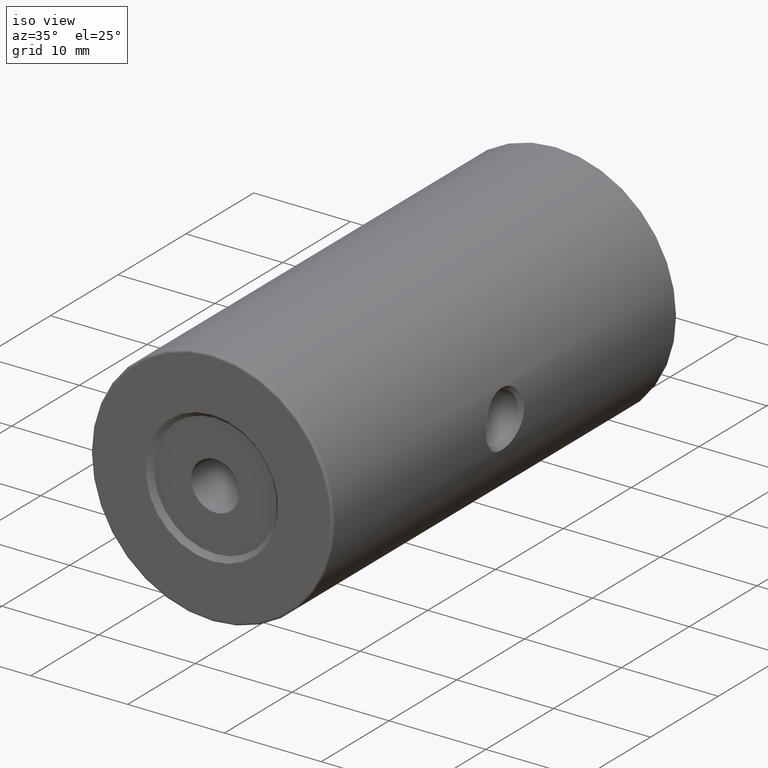
[diagram: clean part render]
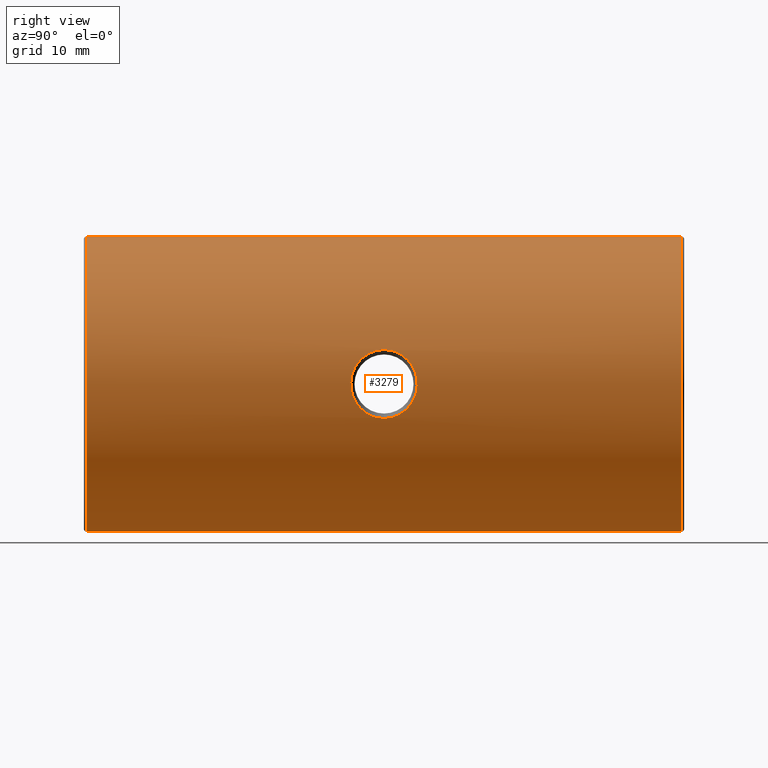
[diagram: tour spotlight — one face highlighted and labeled with its STEP entity id]
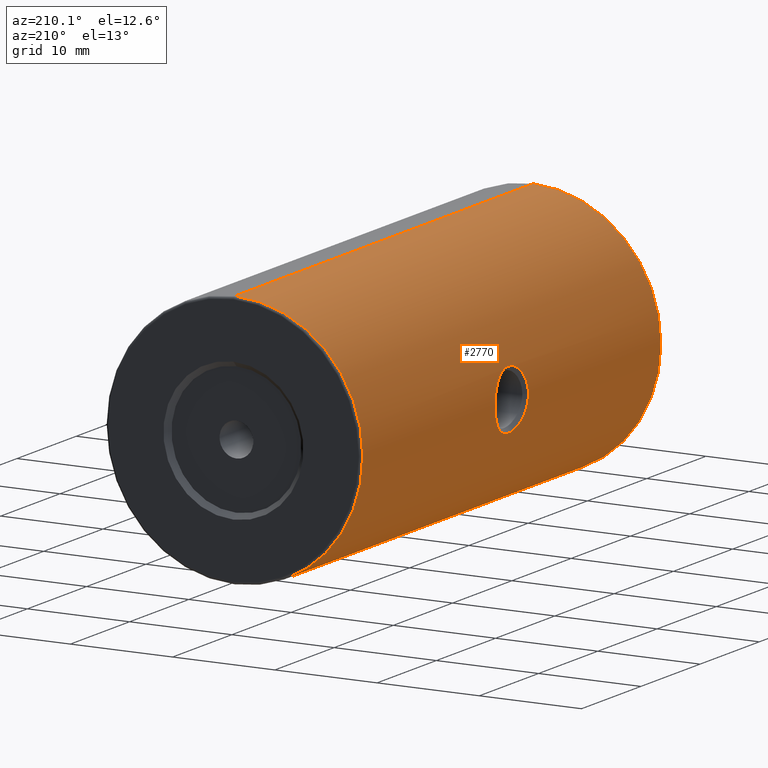
[diagram: tour spotlight — one face highlighted and labeled with its STEP entity id]
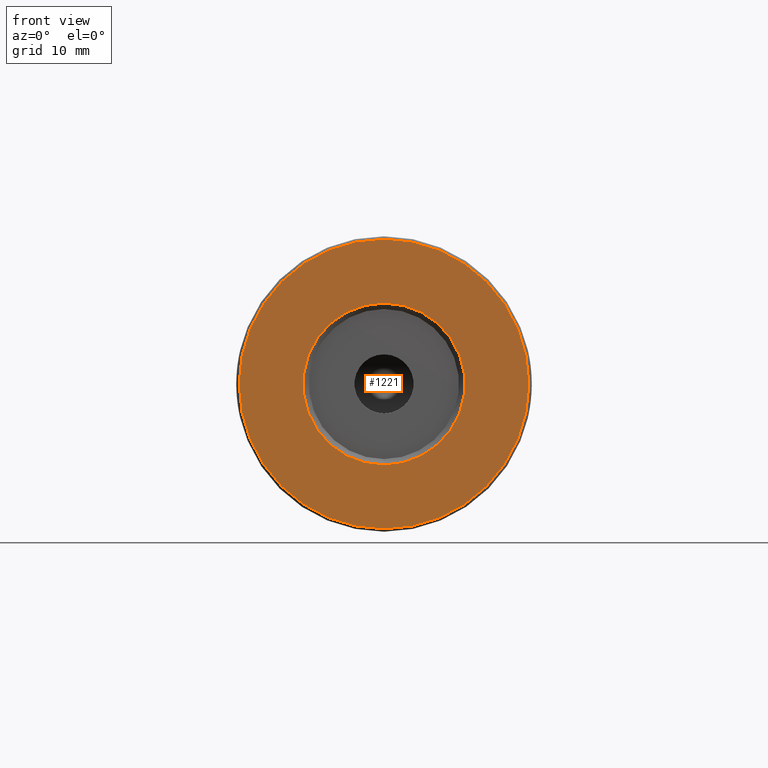
[diagram: tour spotlight — one face highlighted and labeled with its STEP entity id]
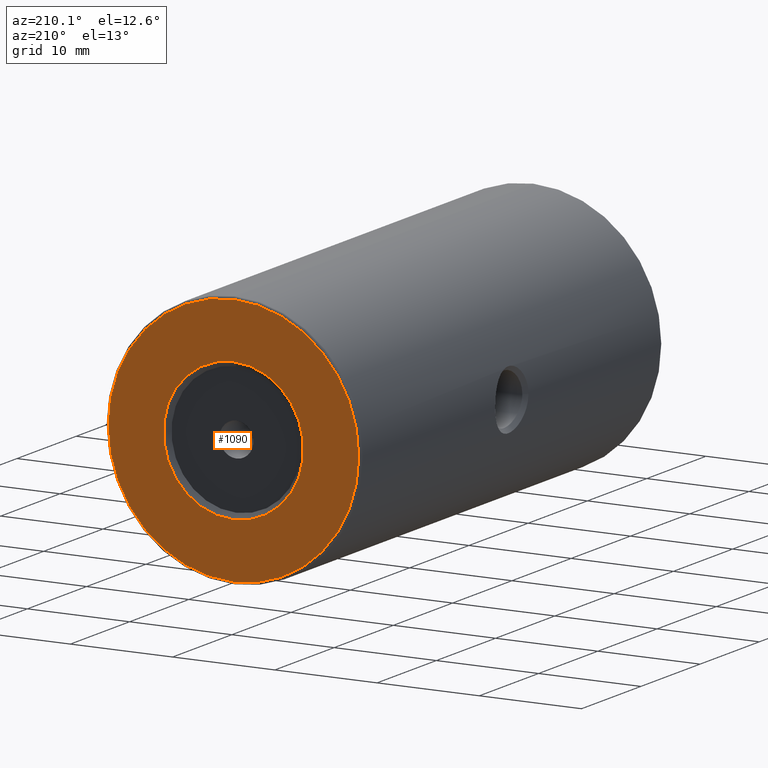
[diagram: tour spotlight — one face highlighted and labeled with its STEP entity id]
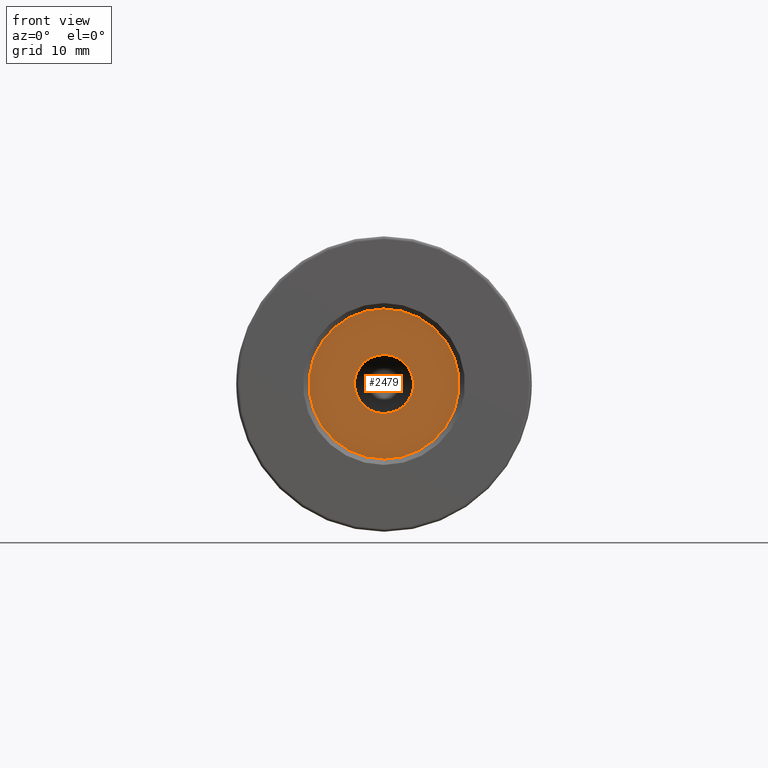
[diagram: tour spotlight — one face highlighted and labeled with its STEP entity id]
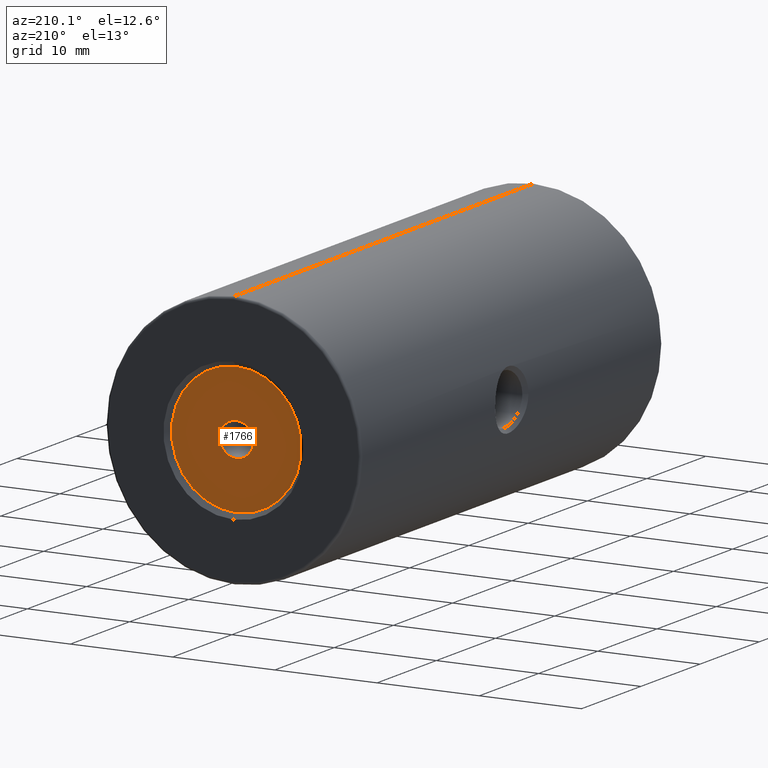
[diagram: tour spotlight — one face highlighted and labeled with its STEP entity id]
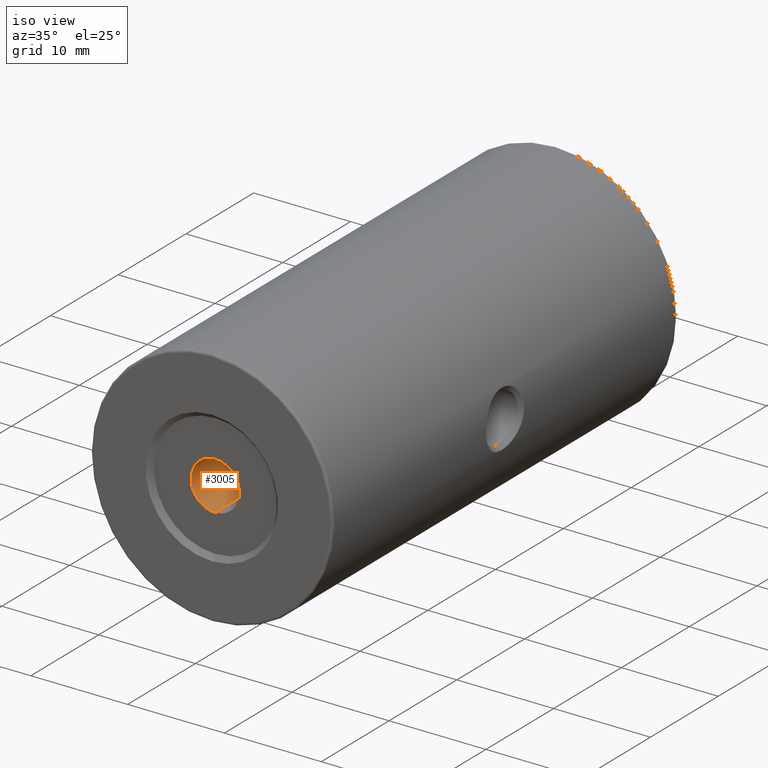
[diagram: tour spotlight — one face highlighted and labeled with its STEP entity id]
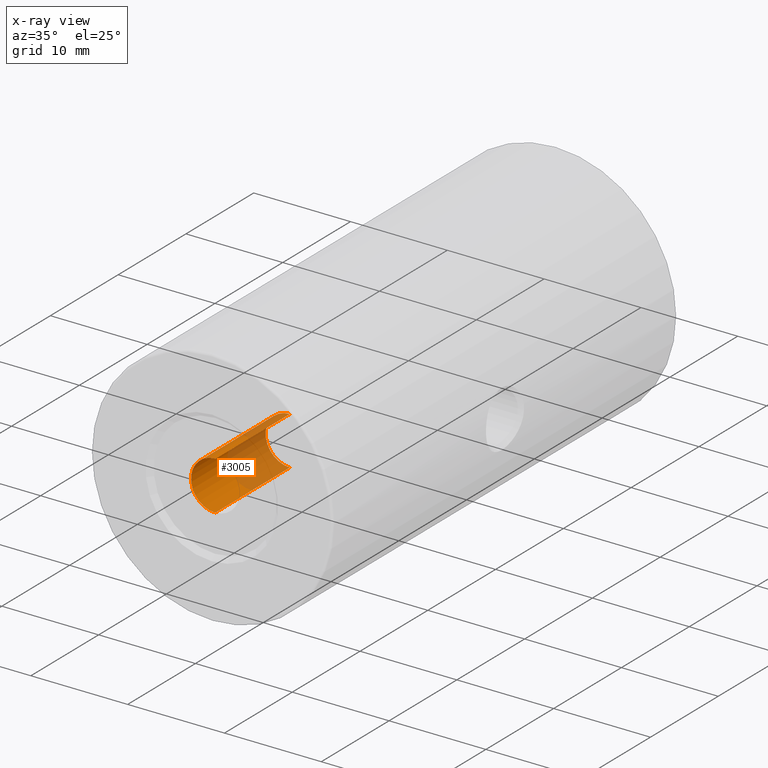
[diagram: x-ray of the same camera — body ghosted, this tour face saturated]
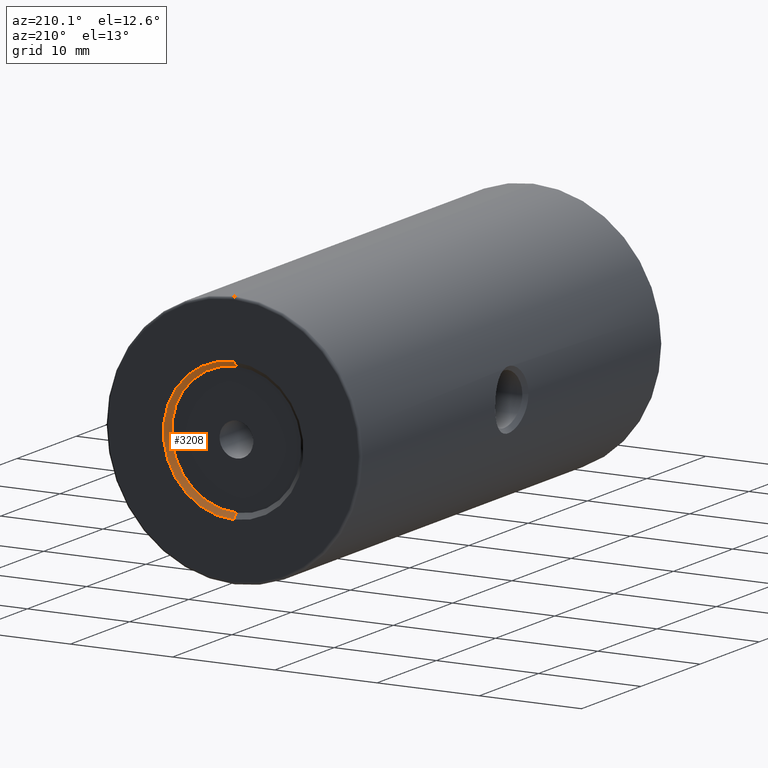
[diagram: tour spotlight — one face highlighted and labeled with its STEP entity id]
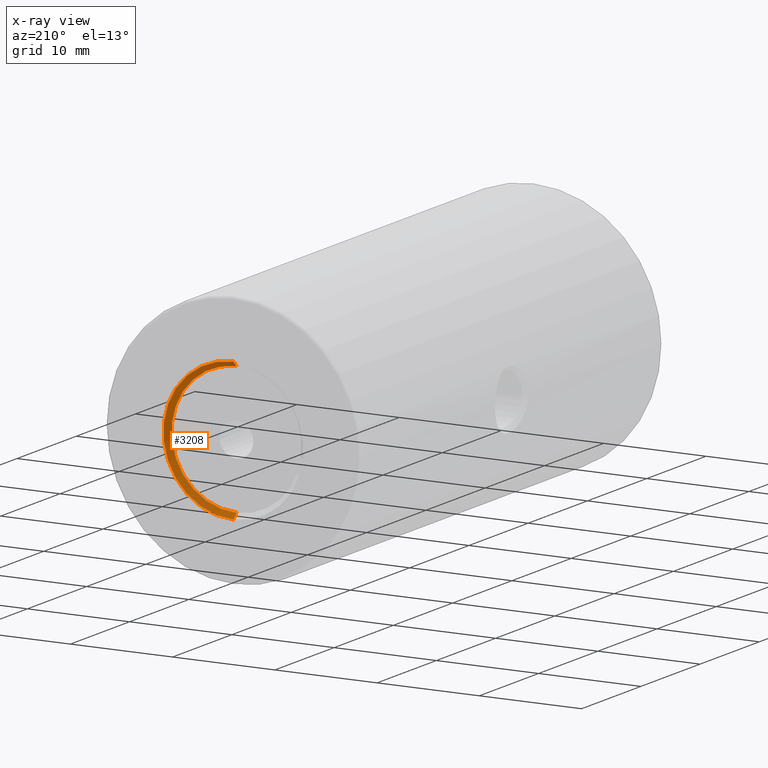
[diagram: x-ray of the same camera — body ghosted, this tour face saturated]
A machine part: a face-by-face anatomy tour. The part has 24 B-rep faces; the first image is the clean iso view, then the 8 largest visible faces are spotlighted one at a time (largest first), each with its STEP entity span.

Face 1 — right view, entity #3279. In plain terms, the highlighted cylindrical surface (partial cylindrical patch) has radius 12.5 mm, axis along (-0, -1, -0).
Definition (entity closure, byte-faithful):
#98 = CARTESIAN_POINT ( 'NONE',  ( -22.50520183104453409, 26.54825218476938886, 50.00000000000000000 ) ) ;
#140 = CARTESIAN_POINT ( 'NONE',  ( -10.26201457399853822, -0.01335821453357177203, 47.47692398633429889 ) ) ;
#145 = LINE ( 'NONE', #948, #2326 ) ;
#173 = LINE ( 'NONE', #2346, #1267 ) ;
#178 = CARTESIAN_POINT ( 'NONE',  ( -10.34847154019206528, 1.401086072872696153, 52.90927974513797949 ) ) ;
#197 = CARTESIAN_POINT ( 'NONE',  ( -10.00964959996493064, 4.191281611626108017, 49.61735547862615192 ) ) ;
#209 = CARTESIAN_POINT ( 'NONE',  ( -10.15310274898990883, -0.7201770142887800041, 51.92207674295631392 ) ) ;
#356 = CARTESIAN_POINT ( 'NONE',  ( -10.34847154019206528, 1.401086072872696153, 52.90927974513797949 ) ) ;
#425 = CARTESIAN_POINT ( 'NONE',  ( -10.07084455742828766, -1.127609090095733402, 51.29153715517114165 ) ) ;
#442 = CARTESIAN_POINT ( 'NONE',  ( -10.34401387725284849, 1.031674240318954938, 52.89084654493356652 ) ) ;
#445 = ORIENTED_EDGE ( 'NONE', *, *, #2862, .T. ) ;
#464 = CARTESIAN_POINT ( 'NONE',  ( -10.34839696664177211, 1.768149378116084192, 52.90896813174319391 ) ) ;
#475 = CARTESIAN_POINT ( 'NONE',  ( -10.08992494498383330, -1.039449521890716266, 51.46152594149945969 ) ) ;
#478 = CARTESIAN_POINT ( 'NONE',  ( -10.03912386685051672, 4.066135811464531180, 50.93725250163799245 ) ) ;
#498 = CARTESIAN_POINT ( 'NONE',  ( -10.03956905278339207, 4.064168843815778587, 49.05718252084633235 ) ) ;
#626 = CARTESIAN_POINT ( 'NONE',  ( -22.50520183104453409, -23.75174781523060830, 50.00000000000000000 ) ) ;
#687 = CARTESIAN_POINT ( 'NONE',  ( -10.02677036316450909, -1.322359924733249148, 49.24218911794419995 ) ) ;
#703 = CARTESIAN_POINT ( 'NONE',  ( -10.02675186171353694, -1.322443306142302211, 50.75721055762423362 ) ) ;
#722 = CARTESIAN_POINT ( 'NONE',  ( -10.01384831664533337, 4.173523746005878721, 50.47415274411839192 ) ) ;
#727 = EDGE_LOOP ( 'NONE', ( #445, #2447, #1348, #2376 ) ) ;
#737 = CARTESIAN_POINT ( 'NONE',  ( -10.02677590330024060, 4.118849129168949297, 49.24228715520004585 ) ) ;
#741 = DIRECTION ( 'NONE',  ( 0.0000000000000000000, 0.0000000000000000000, -1.000000000000000000 ) ) ;
#752 = CARTESIAN_POINT ( 'NONE',  ( -10.15294739807220381, 3.517539804980480245, 51.92107485668888955 ) ) ;
#759 = VERTEX_POINT ( 'NONE', #2539 ) ;
#861 = ORIENTED_EDGE ( 'NONE', *, *, #2321, .T. ) ;
#948 = CARTESIAN_POINT ( 'NONE',  ( -22.50520183104453409, 26.79825218476938886, 62.50000000000000000 ) ) ;
#981 = CARTESIAN_POINT ( 'NONE',  ( -10.22016270266414573, 3.116156845048667634, 52.31070717733658171 ) ) ;
#992 = CARTESIAN_POINT ( 'NONE',  ( -10.32954370539402156, 0.6599845766384684342, 47.16701032394649218 ) ) ;
#1195 = FACE_BOUND ( 'NONE', #3430, .T. ) ;
#1202 = CARTESIAN_POINT ( 'NONE',  ( -10.19775323581731463, -0.4616773628604830537, 47.81021797965178877 ) ) ;
#1206 = CARTESIAN_POINT ( 'NONE',  ( -10.07078360413201246, 3.924386101539599991, 51.29104044065861956 ) ) ;
#1222 = CARTESIAN_POINT ( 'NONE',  ( -10.00959453156879775, -1.395018423941824626, 49.61878162579775875 ) ) ;
#1233 = DIRECTION ( 'NONE',  ( -0.0000000000000000000, -1.000000000000000000, -0.0000000000000000000 ) ) ;
#1258 = CARTESIAN_POINT ( 'NONE',  ( -10.32961809027781364, 2.135293394413420476, 47.16670927389252199 ) ) ;
#1267 = VECTOR ( 'NONE', #1233, 1000.000000000000000 ) ;
#1272 = CARTESIAN_POINT ( 'NONE',  ( -10.22067027172234077, -0.3289239818299856122, 52.32705980216447728 ) ) ;
#1275 = CARTESIAN_POINT ( 'NONE',  ( -10.19795443141755875, 3.257006472548040765, 52.19097686575230455 ) ) ;
#1348 = ORIENTED_EDGE ( 'NONE', *, *, #1426, .T. ) ;
#1384 = VERTEX_POINT ( 'NONE', #356 ) ;
#1426 = EDGE_CURVE ( 'NONE', #2466, #1564, #2611, .T. ) ;
#1428 = DIRECTION ( 'NONE',  ( -0.0000000000000000000, -1.000000000000000000, -0.0000000000000000000 ) ) ;
#1429 = B_SPLINE_CURVE_WITH_KNOTS ( 'NONE', 3,
 ( #2306, #464, #2043, #1493, #1802, #981, #1275, #752, #3113, #2338, #1206, #478, #1787, #722, #1819, #3359, #2887, #2855, #197, #737, #498, #3129, #2591, #1525, #2556, #3096, #3393, #1258, #2820, #1558 ),
 .UNSPECIFIED., .F., .F.,
 ( 4, 2, 2, 2, 2, 2, 2, 2, 2, 2, 2, 2, 2, 2, 4 ),
 ( 0.5000000000000000000, 0.5625000000000002220, 0.5937500000000003331, 0.6250000000000004441, 0.6562500000000005551, 0.6875000000000006661, 0.7187500000000008882, 0.7343750000000015543, 0.7500000000000022204, 0.7812500000000024425, 0.8125000000000026645, 0.8750000000000019984, 0.9062500000000015543, 0.9375000000000013323, 1.000000000000000000 ),
 .UNSPECIFIED. ) ;
#1489 = CARTESIAN_POINT ( 'NONE',  ( -10.34847189391649103, 1.398252184769389173, 47.09071877678784546 ) ) ;
#1493 = CARTESIAN_POINT ( 'NONE',  ( -10.28116133935825083, 2.647623010349662742, 52.61312323641377020 ) ) ;
#1505 = CARTESIAN_POINT ( 'NONE',  ( -10.34850882696722074, 1.217554420251003133, 52.90943555183538649 ) ) ;
#1525 = CARTESIAN_POINT ( 'NONE',  ( -10.19821154777520356, 3.255369150923229871, 47.80765360771015082 ) ) ;
#1531 = ORIENTED_EDGE ( 'NONE', *, *, #2516, .T. ) ;
#1558 = CARTESIAN_POINT ( 'NONE',  ( -10.34847189391649103, 1.398252184769389173, 47.09071877678784546 ) ) ;
#1564 = VERTEX_POINT ( 'NONE', #2733 ) ;
#1649 = DIRECTION ( 'NONE',  ( 0.0000000000000000000, 1.000000000000000000, 0.0000000000000000000 ) ) ;
#1717 = EDGE_CURVE ( 'NONE', #1737, #1564, #173, .T. ) ;
#1731 = CARTESIAN_POINT ( 'NONE',  ( -10.34845463298328205, 1.026200419306730671, 47.09079090336737039 ) ) ;
#1737 = VERTEX_POINT ( 'NONE', #2678 ) ;
#1748 = CARTESIAN_POINT ( 'NONE',  ( -10.03926934905741142, -1.268979855243106414, 50.93906143870314196 ) ) ;
#1787 = CARTESIAN_POINT ( 'NONE',  ( -10.02657681141465496, 4.119691500577874699, 50.75422238448651768 ) ) ;
#1799 = CARTESIAN_POINT ( 'NONE',  ( -10.01393814977706498, -1.376641194403425139, 50.47655221273942772 ) ) ;
#1802 = CARTESIAN_POINT ( 'NONE',  ( -10.26171685815567436, 2.812244921909712314, 52.52163236096714627 ) ) ;
#1819 = CARTESIAN_POINT ( 'NONE',  ( -10.01064152821727760, 4.186927187746605661, 50.38093568510158349 ) ) ;
#1934 = CIRCLE ( 'NONE', #2152, 12.49999999999999645 ) ;
#2024 = CARTESIAN_POINT ( 'NONE',  ( -10.13104527352232687, -0.8357329463582660045, 48.22352196541899616 ) ) ;
#2028 = CARTESIAN_POINT ( 'NONE',  ( -22.50520183104453409, -23.75174781523060830, 62.50000000000000000 ) ) ;
#2043 = CARTESIAN_POINT ( 'NONE',  ( -10.32931247818614828, 2.139314989491154506, 52.83196653074066518 ) ) ;
#2049 = AXIS2_PLACEMENT_3D ( 'NONE', #3428, #2095, #741 ) ;
#2058 = CARTESIAN_POINT ( 'NONE',  ( -10.00627837453365210, -1.408621410736182300, 50.18986673003570331 ) ) ;
#2095 = DIRECTION ( 'NONE',  ( -0.0000000000000000000, -1.000000000000000000, -0.0000000000000000000 ) ) ;
#2152 = AXIS2_PLACEMENT_3D ( 'NONE', #98, #1428, #3039 ) ;
#2267 = CARTESIAN_POINT ( 'NONE',  ( -10.08961095990390078, -1.040983855274799419, 48.54098388018912402 ) ) ;
#2271 = DIRECTION ( 'NONE',  ( -0.0000000000000000000, -1.000000000000000000, -0.0000000000000000000 ) ) ;
#2286 = CARTESIAN_POINT ( 'NONE',  ( -10.01064372293380522, -1.390416779113693213, 50.38099164024523446 ) ) ;
#2287 = VERTEX_POINT ( 'NONE', #2605 ) ;
#2302 = CARTESIAN_POINT ( 'NONE',  ( -10.00520407681040780, -1.413074357631353140, 50.09552809953445518 ) ) ;
#2306 = CARTESIAN_POINT ( 'NONE',  ( -10.34847154019206528, 1.401086072872696153, 52.90927974513797949 ) ) ;
#2318 = CARTESIAN_POINT ( 'NONE',  ( -10.28120580034538101, 0.1491743863046361140, 47.38666087815077788 ) ) ;
#2321 = EDGE_CURVE ( 'NONE', #1384, #2287, #1429, .T. ) ;
#2326 = VECTOR ( 'NONE', #2271, 1000.000000000000000 ) ;
#2335 = CARTESIAN_POINT ( 'NONE',  ( -10.26514075146263671, -0.02094479335832593464, 52.54036784948615946 ) ) ;
#2338 = CARTESIAN_POINT ( 'NONE',  ( -10.08950009457534414, 3.837971256575876566, 51.45792308332200804 ) ) ;
#2346 = CARTESIAN_POINT ( 'NONE',  ( -22.50520183104453409, 26.79825218476938886, 37.50000000000000711 ) ) ;
#2374 = EDGE_CURVE ( 'NONE', #759, #2466, #145, .T. ) ;
#2376 = ORIENTED_EDGE ( 'NONE', *, *, #1717, .F. ) ;
#2421 = B_SPLINE_CURVE_WITH_KNOTS ( 'NONE', 3,
 ( #1489, #1731, #992, #2318, #140, #2800, #1202, #3387, #2024, #2267, #2554, #3079, #687, #1222, #2833, #2302, #2058, #2286, #1799, #703, #1748, #425, #475, #3371, #209, #1272, #2335, #3356, #3093, #442, #1505, #178 ),
 .UNSPECIFIED., .F., .F.,
 ( 4, 2, 2, 2, 2, 2, 2, 2, 2, 2, 2, 2, 2, 2, 2, 4 ),
 ( 0.0000000000000000000, 0.06250000000000058287, 0.09375000000000109635, 0.1250000000000016098, 0.1562500000000021372, 0.1875000000000026368, 0.2187500000000031641, 0.2500000000000036637, 0.2656250000000039413, 0.2812500000000041633, 0.3125000000000036082, 0.3437500000000029976, 0.3750000000000023870, 0.4375000000000011657, 0.4687500000000006106, 0.5000000000000000000 ),
 .UNSPECIFIED. ) ;
#2447 = ORIENTED_EDGE ( 'NONE', *, *, #2374, .T. ) ;
#2466 = VERTEX_POINT ( 'NONE', #2028 ) ;
#2495 = AXIS2_PLACEMENT_3D ( 'NONE', #626, #1649, #2713 ) ;
#2516 = EDGE_CURVE ( 'NONE', #2287, #1384, #2421, .T. ) ;
#2539 = CARTESIAN_POINT ( 'NONE',  ( -22.50520183104453409, 26.54825218476938886, 62.50000000000000000 ) ) ;
#2547 = FACE_OUTER_BOUND ( 'NONE', #727, .T. ) ;
#2554 = CARTESIAN_POINT ( 'NONE',  ( -10.07065230752212237, -1.128473363231514703, 48.71045361163169929 ) ) ;
#2556 = CARTESIAN_POINT ( 'NONE',  ( -10.22069015972117079, 3.112715133751710717, 47.68647738585976725 ) ) ;
#2591 = CARTESIAN_POINT ( 'NONE',  ( -10.13120772191440189, 3.643678481251538148, 48.20895563083970359 ) ) ;
#2605 = CARTESIAN_POINT ( 'NONE',  ( -10.34847189391649103, 1.398252184769389173, 47.09071877678784546 ) ) ;
#2611 = CIRCLE ( 'NONE', #2495, 12.49999999999999645 ) ;
#2678 = CARTESIAN_POINT ( 'NONE',  ( -22.50520183104453409, 26.54825218476938886, 37.50000000000000711 ) ) ;
#2713 = DIRECTION ( 'NONE',  ( 0.0000000000000000000, 0.0000000000000000000, 1.000000000000000000 ) ) ;
#2733 = CARTESIAN_POINT ( 'NONE',  ( -22.50520183104453409, -23.75174781523060830, 37.50000000000000711 ) ) ;
#2800 = CARTESIAN_POINT ( 'NONE',  ( -10.22044804822123432, -0.3177678142852239374, 47.68777784864058589 ) ) ;
#2820 = CARTESIAN_POINT ( 'NONE',  ( -10.34848894705065803, 1.765824933951819720, 47.09064751851791897 ) ) ;
#2833 = CARTESIAN_POINT ( 'NONE',  ( -10.00519734990737142, -1.413097615887285663, 49.80982674692138801 ) ) ;
#2855 = CARTESIAN_POINT ( 'NONE',  ( -10.00523732347763506, 4.209438793488033959, 49.80666152472098673 ) ) ;
#2862 = EDGE_CURVE ( 'NONE', #1737, #759, #1934, .T. ) ;
#2887 = CARTESIAN_POINT ( 'NONE',  ( -10.00518440457559777, 4.209659017144794291, 50.09320650238456807 ) ) ;
#3039 = DIRECTION ( 'NONE',  ( 0.0000000000000000000, 0.0000000000000000000, 1.000000000000000000 ) ) ;
#3079 = CARTESIAN_POINT ( 'NONE',  ( -10.03928546547296108, -1.268904155931870559, 49.06091485622430781 ) ) ;
#3093 = CARTESIAN_POINT ( 'NONE',  ( -10.32641410112916702, 0.6672506221585774444, 52.81577975407616066 ) ) ;
#3096 = CARTESIAN_POINT ( 'NONE',  ( -10.26240494945708015, 2.806784448260575271, 47.47501714754130120 ) ) ;
#3113 = CARTESIAN_POINT ( 'NONE',  ( -10.13051884921692469, 3.634910052865556906, 51.77268452498275053 ) ) ;
#3129 = CARTESIAN_POINT ( 'NONE',  ( -10.08673579311691348, 3.852910402552537583, 48.53189826283610842 ) ) ;
#3134 = CYLINDRICAL_SURFACE ( 'NONE', #2049, 12.49999999999999645 ) ;
#3279 = ADVANCED_FACE ( 'NONE', ( #1195, #2547 ), #3134, .T. ) ;
#3356 = CARTESIAN_POINT ( 'NONE',  ( -10.31357678706534386, 0.4914312575570382591, 52.76042022121072250 ) ) ;
#3359 = CARTESIAN_POINT ( 'NONE',  ( -10.00627509750832722, 4.205142563663885724, 50.18968306952500313 ) ) ;
#3371 = CARTESIAN_POINT ( 'NONE',  ( -10.13100719877452427, -0.8359003744947344217, 51.77608148403416521 ) ) ;
#3387 = CARTESIAN_POINT ( 'NONE',  ( -10.15309026959585381, -0.7201977725135473296, 48.07808007598476507 ) ) ;
#3393 = CARTESIAN_POINT ( 'NONE',  ( -10.28138215996793292, 2.645685024780803474, 47.38584113130664832 ) ) ;
#3428 = CARTESIAN_POINT ( 'NONE',  ( -22.50520183104453409, 26.79825218476938886, 50.00000000000000000 ) ) ;
#3430 = EDGE_LOOP ( 'NONE', ( #1531, #861 ) ) ;

Face 2 — auxiliary view, entity #2770. In plain terms, the highlighted cylindrical surface (partial cylindrical patch) has radius 12.5 mm, axis along (-0, -1, -0).
Definition (entity closure, byte-faithful):
#33 = EDGE_CURVE ( 'NONE', #1564, #2466, #874, .T. ) ;
#62 = FACE_OUTER_BOUND ( 'NONE', #1944, .T. ) ;
#75 = CARTESIAN_POINT ( 'NONE',  ( -34.98663707284357116, 4.134943201847163685, 50.76675213544120169 ) ) ;
#145 = LINE ( 'NONE', #948, #2326 ) ;
#149 = DIRECTION ( 'NONE',  ( 0.0000000000000000000, 0.0000000000000000000, 1.000000000000000000 ) ) ;
#172 = EDGE_CURVE ( 'NONE', #734, #773, #1122, .T. ) ;
#173 = LINE ( 'NONE', #2346, #1267 ) ;
#202 = ORIENTED_EDGE ( 'NONE', *, *, #1717, .T. ) ;
#296 = CARTESIAN_POINT ( 'NONE',  ( -34.92365520087234643, 3.852890852562539159, 48.53098690627005851 ) ) ;
#332 = CARTESIAN_POINT ( 'NONE',  ( -35.00520183104453764, -1.413082124769264647, 50.00000000000000000 ) ) ;
#375 = CARTESIAN_POINT ( 'NONE',  ( -34.81205133254194095, 3.254567286170635843, 52.19320050888276796 ) ) ;
#394 = CARTESIAN_POINT ( 'NONE',  ( -34.93943696048356884, -1.127055212630266423, 48.70724999349550188 ) ) ;
#397 = CARTESIAN_POINT ( 'NONE',  ( -34.96325857830176176, -1.233718698016878834, 51.02694110181725051 ) ) ;
#469 = ORIENTED_EDGE ( 'NONE', *, *, #2744, .T. ) ;
#477 = CARTESIAN_POINT ( 'NONE',  ( -35.00520147448047226, 4.209585013874982629, 50.00298564924415956 ) ) ;
#556 = ORIENTED_EDGE ( 'NONE', *, *, #1943, .T. ) ;
#578 = DIRECTION ( 'NONE',  ( 0.0000000000000000000, 0.0000000000000000000, 1.000000000000000000 ) ) ;
#583 = CARTESIAN_POINT ( 'NONE',  ( -34.68408990658819846, 0.6657967389097505517, 47.18465315096351276 ) ) ;
#599 = CARTESIAN_POINT ( 'NONE',  ( -34.78997005406737486, 3.114338606149192668, 47.68786276459744045 ) ) ;
#606 = CARTESIAN_POINT ( 'NONE',  ( -34.72905683927812248, 2.646135917091509082, 52.61400507405523541 ) ) ;
#625 = CARTESIAN_POINT ( 'NONE',  ( -34.68406788086938519, 0.6663276252035800207, 52.81543937149059076 ) ) ;
#655 = CARTESIAN_POINT ( 'NONE',  ( -34.87939741778114922, -0.8359134743064454698, 48.22389352012680064 ) ) ;
#658 = CARTESIAN_POINT ( 'NONE',  ( -34.87963477422611902, -0.8371459405301793222, 51.77451349609641085 ) ) ;
#693 = CARTESIAN_POINT ( 'NONE',  ( -35.00520183104453764, -1.413082124769264647, 50.00000000000000000 ) ) ;
#734 = VERTEX_POINT ( 'NONE', #477 ) ;
#759 = VERTEX_POINT ( 'NONE', #2539 ) ;
#773 = VERTEX_POINT ( 'NONE', #1989 ) ;
#832 = CYLINDRICAL_SURFACE ( 'NONE', #1990, 12.49999999999999645 ) ;
#837 = CARTESIAN_POINT ( 'NONE',  ( -34.81216474024146379, -0.4587072315864540450, 47.80748851904365893 ) ) ;
#842 = B_SPLINE_CURVE_WITH_KNOTS ( 'NONE', 3,
 ( #332, #2787, #3048, #394, #1458, #655, #1719, #837, #1935, #1130, #2476, #1077, #583, #854, #1901, #1609, #3247, #2991, #1916, #2160, #893, #599, #1396, #2141, #296, #2214, #3263, #1659, #2404, #3286 ),
 .UNSPECIFIED., .F., .F.,
 ( 4, 2, 2, 2, 2, 2, 2, 2, 2, 2, 2, 2, 2, 2, 4 ),
 ( 0.0000000000000000000, 0.06249999999999920897, 0.09374999999999933387, 0.1249999999999994726, 0.1562499999999996114, 0.1874999999999997224, 0.2187499999999998612, 0.2500000000000000000, 0.2812500000000001665, 0.3125000000000002776, 0.3437500000000003886, 0.3750000000000004441, 0.4374999999999997224, 0.4687499999999998335, 0.5000000000000000000 ),
 .UNSPECIFIED. ) ;
#854 = CARTESIAN_POINT ( 'NONE',  ( -34.66645419303000608, 1.029721679353868158, 47.10942330579130299 ) ) ;
#874 = CIRCLE ( 'NONE', #3270, 12.49999999999999645 ) ;
#893 = CARTESIAN_POINT ( 'NONE',  ( -34.74847621066364667, 2.810539836545141945, 47.47735429477527447 ) ) ;
#918 = CARTESIAN_POINT ( 'NONE',  ( -22.50520183104453409, -23.75174781523060830, 50.00000000000000000 ) ) ;
#932 = CARTESIAN_POINT ( 'NONE',  ( -34.92002400583491095, 3.832124608321431758, 51.45923812920059248 ) ) ;
#948 = CARTESIAN_POINT ( 'NONE',  ( -22.50520183104453409, 26.79825218476938886, 62.50000000000000000 ) ) ;
#952 = CARTESIAN_POINT ( 'NONE',  ( -34.98275065809032469, -1.318488312188778711, 50.75447521938718864 ) ) ;
#1017 = ORIENTED_EDGE ( 'NONE', *, *, #2374, .F. ) ;
#1077 = CARTESIAN_POINT ( 'NONE',  ( -34.69688201949649908, 0.4909844491418091095, 47.23984144479322111 ) ) ;
#1122 = B_SPLINE_CURVE_WITH_KNOTS ( 'NONE', 3,
 ( #2998, #2543, #75, #1209, #1721, #932, #2524, #2277, #1154, #375, #1171, #2221, #606, #1442, #1665, #2732, #1460, #1135, #3269, #3308, #3017, #625, #1684, #2751, #2505, #2239, #1976, #3051, #658, #2789, #2256, #397, #2013, #952, #3084, #1754, #2823, #693 ),
 .UNSPECIFIED., .F., .F.,
 ( 4, 2, 2, 2, 2, 2, 2, 2, 2, 2, 2, 2, 2, 2, 2, 2, 2, 2, 4 ),
 ( 0.5000000000000000000, 0.5625000000000000000, 0.5781250000000005551, 0.5937500000000011102, 0.6250000000000009992, 0.6562500000000008882, 0.6875000000000007772, 0.7187500000000006661, 0.7343750000000005551, 0.7500000000000003331, 0.7812500000000000000, 0.8124999999999996669, 0.8437499999999993339, 0.8749999999999991118, 0.9062499999999986677, 0.9374999999999984457, 0.9531249999999988898, 0.9687499999999992228, 1.000000000000000000 ),
 .UNSPECIFIED. ) ;
#1130 = CARTESIAN_POINT ( 'NONE',  ( -34.74815230532114185, -0.01157353951462466134, 47.47574332327106106 ) ) ;
#1135 = CARTESIAN_POINT ( 'NONE',  ( -34.66304078550321321, 1.581811714230839216, 52.90465927043064909 ) ) ;
#1154 = CARTESIAN_POINT ( 'NONE',  ( -34.85705643049904978, 3.515358686858386150, 51.92363226179142544 ) ) ;
#1171 = CARTESIAN_POINT ( 'NONE',  ( -34.78950233570270001, 3.111229001541796269, 52.31461547240762400 ) ) ;
#1191 = DIRECTION ( 'NONE',  ( 0.0000000000000000000, 1.000000000000000000, 0.0000000000000000000 ) ) ;
#1209 = CARTESIAN_POINT ( 'NONE',  ( -34.94725856887868076, 3.958573559328189440, 51.20539725434923639 ) ) ;
#1233 = DIRECTION ( 'NONE',  ( -0.0000000000000000000, -1.000000000000000000, -0.0000000000000000000 ) ) ;
#1267 = VECTOR ( 'NONE', #1233, 1000.000000000000000 ) ;
#1396 = CARTESIAN_POINT ( 'NONE',  ( -34.81219287682090879, 3.255432286647900852, 47.80758469880399275 ) ) ;
#1403 = EDGE_LOOP ( 'NONE', ( #556, #2295 ) ) ;
#1442 = CARTESIAN_POINT ( 'NONE',  ( -34.69672515564803206, 2.303875218906339839, 52.76087174913159572 ) ) ;
#1458 = CARTESIAN_POINT ( 'NONE',  ( -34.92056304550113310, -1.039858968507664239, 48.53915210879908670 ) ) ;
#1460 = CARTESIAN_POINT ( 'NONE',  ( -34.66752058121686986, 1.766213776379287337, 52.88584409472476722 ) ) ;
#1564 = VERTEX_POINT ( 'NONE', #2733 ) ;
#1609 = CARTESIAN_POINT ( 'NONE',  ( -34.66192908598774380, 1.582225631726111859, 47.09070756900332810 ) ) ;
#1659 = CARTESIAN_POINT ( 'NONE',  ( -35.00086437889079605, 4.191749029194700604, 49.62049296388079966 ) ) ;
#1665 = CARTESIAN_POINT ( 'NONE',  ( -34.68386991631050620, 2.126930833336569293, 52.81629139459824529 ) ) ;
#1684 = CARTESIAN_POINT ( 'NONE',  ( -34.69719134326542331, 0.4871785545117305882, 52.75879586371009822 ) ) ;
#1717 = EDGE_CURVE ( 'NONE', #1737, #1564, #173, .T. ) ;
#1719 = CARTESIAN_POINT ( 'NONE',  ( -34.85689439158285552, -0.7179281710238752945, 48.07538743316563767 ) ) ;
#1721 = CARTESIAN_POINT ( 'NONE',  ( -34.93867267744895599, 3.919447845722299206, 51.29073167660471455 ) ) ;
#1737 = VERTEX_POINT ( 'NONE', #2678 ) ;
#1754 = CARTESIAN_POINT ( 'NONE',  ( -35.00080834476570857, -1.395005945085236121, 50.38049639798320811 ) ) ;
#1901 = CARTESIAN_POINT ( 'NONE',  ( -34.66193446152058044, 1.214990703612171652, 47.09073003121878287 ) ) ;
#1916 = CARTESIAN_POINT ( 'NONE',  ( -34.69691194386799538, 2.305978899551198058, 47.23996501533116543 ) ) ;
#1935 = CARTESIAN_POINT ( 'NONE',  ( -34.79001590680987732, -0.3182597614011899445, 47.68806332061663511 ) ) ;
#1943 = EDGE_CURVE ( 'NONE', #773, #734, #842, .T. ) ;
#1944 = EDGE_LOOP ( 'NONE', ( #1017, #469, #202, #2250 ) ) ;
#1949 = DIRECTION ( 'NONE',  ( -0.0000000000000000000, -1.000000000000000000, -0.0000000000000000000 ) ) ;
#1976 = CARTESIAN_POINT ( 'NONE',  ( -34.81267991288401475, -0.4618486555672610683, 52.18960616396362440 ) ) ;
#1989 = CARTESIAN_POINT ( 'NONE',  ( -35.00520183104453764, -1.413082124769264647, 50.00000000000000000 ) ) ;
#1990 = AXIS2_PLACEMENT_3D ( 'NONE', #2471, #1949, #3022 ) ;
#2013 = CARTESIAN_POINT ( 'NONE',  ( -34.97029888078101578, -1.264562310687933122, 50.93798354390281702 ) ) ;
#2028 = CARTESIAN_POINT ( 'NONE',  ( -22.50520183104453409, -23.75174781523060830, 62.50000000000000000 ) ) ;
#2141 = CARTESIAN_POINT ( 'NONE',  ( -34.87974277256410716, 3.646729404359435378, 48.21237859108570234 ) ) ;
#2160 = CARTESIAN_POINT ( 'NONE',  ( -34.72905173131680101, 2.645954824906287861, 47.38598351050890045 ) ) ;
#2214 = CARTESIAN_POINT ( 'NONE',  ( -34.97116716007145953, 4.065639543320876292, 49.06127516942768807 ) ) ;
#2221 = CARTESIAN_POINT ( 'NONE',  ( -34.74801352653030051, 2.806830231912499141, 52.52488523753665106 ) ) ;
#2226 = DIRECTION ( 'NONE',  ( -0.0000000000000000000, -1.000000000000000000, -0.0000000000000000000 ) ) ;
#2239 = CARTESIAN_POINT ( 'NONE',  ( -34.79013651511041161, -0.3190703824123009569, 52.31129705542046793 ) ) ;
#2250 = ORIENTED_EDGE ( 'NONE', *, *, #33, .T. ) ;
#2256 = CARTESIAN_POINT ( 'NONE',  ( -34.93964974343708008, -1.128013625721391966, 51.29060020607741421 ) ) ;
#2271 = DIRECTION ( 'NONE',  ( -0.0000000000000000000, -1.000000000000000000, -0.0000000000000000000 ) ) ;
#2277 = CARTESIAN_POINT ( 'NONE',  ( -34.87912024513033060, 3.630988285995033760, 51.77802314548137019 ) ) ;
#2295 = ORIENTED_EDGE ( 'NONE', *, *, #172, .T. ) ;
#2326 = VECTOR ( 'NONE', #2271, 1000.000000000000000 ) ;
#2346 = CARTESIAN_POINT ( 'NONE',  ( -22.50520183104453409, 26.79825218476938886, 37.50000000000000711 ) ) ;
#2374 = EDGE_CURVE ( 'NONE', #759, #2466, #145, .T. ) ;
#2404 = CARTESIAN_POINT ( 'NONE',  ( -35.00524692301915053, 4.209770318075647388, 49.81270652709905988 ) ) ;
#2466 = VERTEX_POINT ( 'NONE', #2028 ) ;
#2471 = CARTESIAN_POINT ( 'NONE',  ( -22.50520183104453409, 26.79825218476938886, 50.00000000000000000 ) ) ;
#2476 = CARTESIAN_POINT ( 'NONE',  ( -34.72889004346956199, 0.1521183056323430760, 47.38523661628916273 ) ) ;
#2505 = CARTESIAN_POINT ( 'NONE',  ( -34.74827243124371989, -0.01252608441482088407, 52.52367520665772105 ) ) ;
#2524 = CARTESIAN_POINT ( 'NONE',  ( -34.91000489703898069, 3.784083020720696577, 51.54180631078441621 ) ) ;
#2539 = CARTESIAN_POINT ( 'NONE',  ( -22.50520183104453409, 26.54825218476938886, 62.50000000000000000 ) ) ;
#2543 = CARTESIAN_POINT ( 'NONE',  ( -35.00511057740313703, 4.209214405473654885, 50.38354389353440155 ) ) ;
#2678 = CARTESIAN_POINT ( 'NONE',  ( -22.50520183104453409, 26.54825218476938886, 37.50000000000000711 ) ) ;
#2732 = CARTESIAN_POINT ( 'NONE',  ( -34.67081540850393395, 1.856390161469811950, 52.87196965017498229 ) ) ;
#2733 = CARTESIAN_POINT ( 'NONE',  ( -22.50520183104453409, -23.75174781523060830, 37.50000000000000711 ) ) ;
#2744 = EDGE_CURVE ( 'NONE', #759, #1737, #2943, .T. ) ;
#2751 = CARTESIAN_POINT ( 'NONE',  ( -34.72924432496667890, 0.1489096346319905562, 52.61311078802905428 ) ) ;
#2770 = ADVANCED_FACE ( 'NONE', ( #62, #3296 ), #832, .T. ) ;
#2787 = CARTESIAN_POINT ( 'NONE',  ( -35.00520183104454475, -1.413082089048374623, 49.61579498181190928 ) ) ;
#2789 = CARTESIAN_POINT ( 'NONE',  ( -34.92091958335413437, -1.041568019843577719, 51.45788940187865279 ) ) ;
#2823 = CARTESIAN_POINT ( 'NONE',  ( -35.00520183104453054, -1.413082142476728587, 50.19045706908688942 ) ) ;
#2943 = CIRCLE ( 'NONE', #2948, 12.49999999999999645 ) ;
#2948 = AXIS2_PLACEMENT_3D ( 'NONE', #2986, #2226, #578 ) ;
#2986 = CARTESIAN_POINT ( 'NONE',  ( -22.50520183104453409, 26.54825218476938886, 50.00000000000000000 ) ) ;
#2991 = CARTESIAN_POINT ( 'NONE',  ( -34.68404829437810832, 2.129844607690634550, 47.18447624015438180 ) ) ;
#2998 = CARTESIAN_POINT ( 'NONE',  ( -35.00520147448047226, 4.209585013874982629, 50.00298564924415956 ) ) ;
#3017 = CARTESIAN_POINT ( 'NONE',  ( -34.66652474597602662, 1.028189448967887332, 52.89027716194794237 ) ) ;
#3022 = DIRECTION ( 'NONE',  ( 0.0000000000000000000, 0.0000000000000000000, -1.000000000000000000 ) ) ;
#3048 = CARTESIAN_POINT ( 'NONE',  ( -34.98691299261885490, -1.339639162847728215, 49.23677669519164368 ) ) ;
#3051 = CARTESIAN_POINT ( 'NONE',  ( -34.85728882726070310, -0.7200549649273926267, 51.92206626476146880 ) ) ;
#3084 = CARTESIAN_POINT ( 'NONE',  ( -34.98808031034269561, -1.341176413146209612, 50.66066995143731333 ) ) ;
#3247 = CARTESIAN_POINT ( 'NONE',  ( -34.66651604185613422, 1.768063399759161269, 47.10968654197857575 ) ) ;
#3263 = CARTESIAN_POINT ( 'NONE',  ( -34.98371482563759116, 4.119216514428254428, 49.24348063879135395 ) ) ;
#3269 = CARTESIAN_POINT ( 'NONE',  ( -34.66191919043988889, 1.488437803988799768, 52.90933378057248859 ) ) ;
#3270 = AXIS2_PLACEMENT_3D ( 'NONE', #918, #1191, #149 ) ;
#3286 = CARTESIAN_POINT ( 'NONE',  ( -35.00520147448047226, 4.209585013874982629, 50.00298564924415956 ) ) ;
#3296 = FACE_BOUND ( 'NONE', #1403, .T. ) ;
#3308 = CARTESIAN_POINT ( 'NONE',  ( -34.66195746431354507, 1.211812476570046204, 52.90917384922278899 ) ) ;

Face 3 — front view, entity #1221. In plain terms, the highlighted planar face has unit normal (0, 1, 0).
Definition (entity closure, byte-faithful):
#61 = FACE_BOUND ( 'NONE', #1579, .T. ) ;
#97 = CARTESIAN_POINT ( 'NONE',  ( -22.50520183104453409, -24.00174781523060830, 43.14999999999999858 ) ) ;
#164 = DIRECTION ( 'NONE',  ( -0.0000000000000000000, -1.000000000000000000, -0.0000000000000000000 ) ) ;
#181 = CARTESIAN_POINT ( 'NONE',  ( -22.50520183104453409, -24.00174781523060830, 50.00000000000000000 ) ) ;
#285 = ORIENTED_EDGE ( 'NONE', *, *, #1511, .T. ) ;
#319 = CARTESIAN_POINT ( 'NONE',  ( -22.50520183104453409, -24.00174781523060830, 50.00000000000000000 ) ) ;
#337 = CARTESIAN_POINT ( 'NONE',  ( -22.50520183104453409, -24.00174781523060830, 56.85000000000000142 ) ) ;
#389 = ORIENTED_EDGE ( 'NONE', *, *, #2636, .T. ) ;
#409 = ORIENTED_EDGE ( 'NONE', *, *, #552, .T. ) ;
#443 = AXIS2_PLACEMENT_3D ( 'NONE', #884, #1121, #1157 ) ;
#455 = EDGE_LOOP ( 'NONE', ( #409, #285 ) ) ;
#552 = EDGE_CURVE ( 'NONE', #1793, #1648, #1378, .T. ) ;
#586 = CARTESIAN_POINT ( 'NONE',  ( -22.50520183104453409, -24.00174781523060830, 62.25000000000000000 ) ) ;
#607 = AXIS2_PLACEMENT_3D ( 'NONE', #181, #164, #995 ) ;
#766 = CIRCLE ( 'NONE', #1828, 12.24999999999999645 ) ;
#884 = CARTESIAN_POINT ( 'NONE',  ( -22.50520183104453409, -24.00174781523060830, 50.00000000000000000 ) ) ;
#995 = DIRECTION ( 'NONE',  ( 0.0000000000000000000, 0.0000000000000000000, 1.000000000000000000 ) ) ;
#1011 = CARTESIAN_POINT ( 'NONE',  ( -22.50520183104453409, -24.00174781523060830, 50.00000000000000000 ) ) ;
#1035 = VERTEX_POINT ( 'NONE', #97 ) ;
#1121 = DIRECTION ( 'NONE',  ( 0.0000000000000000000, 1.000000000000000000, 0.0000000000000000000 ) ) ;
#1157 = DIRECTION ( 'NONE',  ( 0.0000000000000000000, -0.0000000000000000000, 1.000000000000000000 ) ) ;
#1221 = ADVANCED_FACE ( 'NONE', ( #2451, #61 ), #2756, .F. ) ;
#1378 = CIRCLE ( 'NONE', #607, 12.24999999999999645 ) ;
#1385 = DIRECTION ( 'NONE',  ( -0.0000000000000000000, -1.000000000000000000, -0.0000000000000000000 ) ) ;
#1511 = EDGE_CURVE ( 'NONE', #1648, #1793, #766, .T. ) ;
#1548 = CIRCLE ( 'NONE', #1714, 6.850000000000002309 ) ;
#1579 = EDGE_LOOP ( 'NONE', ( #389, #2051 ) ) ;
#1596 = VERTEX_POINT ( 'NONE', #337 ) ;
#1602 = AXIS2_PLACEMENT_3D ( 'NONE', #1011, #3081, #2869 ) ;
#1648 = VERTEX_POINT ( 'NONE', #3104 ) ;
#1714 = AXIS2_PLACEMENT_3D ( 'NONE', #2186, #2757, #3277 ) ;
#1793 = VERTEX_POINT ( 'NONE', #586 ) ;
#1828 = AXIS2_PLACEMENT_3D ( 'NONE', #319, #1385, #3254 ) ;
#2051 = ORIENTED_EDGE ( 'NONE', *, *, #2222, .T. ) ;
#2186 = CARTESIAN_POINT ( 'NONE',  ( -22.50520183104453409, -24.00174781523060830, 50.00000000000000000 ) ) ;
#2222 = EDGE_CURVE ( 'NONE', #1596, #1035, #3112, .T. ) ;
#2451 = FACE_OUTER_BOUND ( 'NONE', #455, .T. ) ;
#2636 = EDGE_CURVE ( 'NONE', #1035, #1596, #1548, .T. ) ;
#2756 = PLANE ( 'NONE',  #443 ) ;
#2757 = DIRECTION ( 'NONE',  ( 0.0000000000000000000, 1.000000000000000000, 0.0000000000000000000 ) ) ;
#2869 = DIRECTION ( 'NONE',  ( 0.0000000000000000000, 0.0000000000000000000, 1.000000000000000000 ) ) ;
#3081 = DIRECTION ( 'NONE',  ( 0.0000000000000000000, 1.000000000000000000, 0.0000000000000000000 ) ) ;
#3104 = CARTESIAN_POINT ( 'NONE',  ( -22.50520183104453409, -24.00174781523060830, 37.75000000000000711 ) ) ;
#3112 = CIRCLE ( 'NONE', #1602, 6.850000000000002309 ) ;
#3254 = DIRECTION ( 'NONE',  ( 0.0000000000000000000, 0.0000000000000000000, 1.000000000000000000 ) ) ;
#3277 = DIRECTION ( 'NONE',  ( 0.0000000000000000000, 0.0000000000000000000, 1.000000000000000000 ) ) ;

Face 4 — auxiliary view, entity #1090. In plain terms, the highlighted planar face has unit normal (0, 1, 0).
Definition (entity closure, byte-faithful):
#211 = AXIS2_PLACEMENT_3D ( 'NONE', #1455, #736, #3321 ) ;
#259 = CIRCLE ( 'NONE', #493, 6.850000000000008527 ) ;
#265 = EDGE_CURVE ( 'NONE', #3325, #1701, #259, .T. ) ;
#283 = CARTESIAN_POINT ( 'NONE',  ( -22.50520183104453409, 26.79825218476938886, 43.14999999999999147 ) ) ;
#322 = DIRECTION ( 'NONE',  ( -0.0000000000000000000, -1.000000000000000000, -0.0000000000000000000 ) ) ;
#340 = PLANE ( 'NONE',  #1498 ) ;
#369 = DIRECTION ( 'NONE',  ( -0.0000000000000000000, -1.000000000000000000, -0.0000000000000000000 ) ) ;
#493 = AXIS2_PLACEMENT_3D ( 'NONE', #873, #369, #1937 ) ;
#494 = EDGE_CURVE ( 'NONE', #2680, #3154, #3446, .T. ) ;
#629 = DIRECTION ( 'NONE',  ( 0.0000000000000000000, 0.0000000000000000000, 1.000000000000000000 ) ) ;
#736 = DIRECTION ( 'NONE',  ( 0.0000000000000000000, 1.000000000000000000, 0.0000000000000000000 ) ) ;
#848 = DIRECTION ( 'NONE',  ( 0.0000000000000000000, -0.0000000000000000000, 1.000000000000000000 ) ) ;
#873 = CARTESIAN_POINT ( 'NONE',  ( -22.50520183104453409, 26.79825218476938886, 50.00000000000000000 ) ) ;
#885 = CARTESIAN_POINT ( 'NONE',  ( -22.50520183104453409, 26.79825218476938886, 62.25000000000000000 ) ) ;
#1044 = CIRCLE ( 'NONE', #2894, 6.850000000000008527 ) ;
#1083 = ORIENTED_EDGE ( 'NONE', *, *, #1136, .T. ) ;
#1090 = ADVANCED_FACE ( 'NONE', ( #3257, #1370 ), #340, .T. ) ;
#1136 = EDGE_CURVE ( 'NONE', #1701, #3325, #1044, .T. ) ;
#1256 = EDGE_CURVE ( 'NONE', #3154, #2680, #3006, .T. ) ;
#1263 = ORIENTED_EDGE ( 'NONE', *, *, #265, .T. ) ;
#1370 = FACE_BOUND ( 'NONE', #2662, .T. ) ;
#1427 = DIRECTION ( 'NONE',  ( 0.0000000000000000000, 1.000000000000000000, 0.0000000000000000000 ) ) ;
#1455 = CARTESIAN_POINT ( 'NONE',  ( -22.50520183104453409, 26.79825218476938886, 50.00000000000000000 ) ) ;
#1498 = AXIS2_PLACEMENT_3D ( 'NONE', #2434, #1636, #848 ) ;
#1636 = DIRECTION ( 'NONE',  ( 0.0000000000000000000, 1.000000000000000000, 0.0000000000000000000 ) ) ;
#1701 = VERTEX_POINT ( 'NONE', #283 ) ;
#1823 = CARTESIAN_POINT ( 'NONE',  ( -22.50520183104453409, 26.79825218476938886, 37.75000000000000711 ) ) ;
#1927 = CARTESIAN_POINT ( 'NONE',  ( -22.50520183104453409, 26.79825218476938886, 50.00000000000000000 ) ) ;
#1937 = DIRECTION ( 'NONE',  ( 0.0000000000000000000, 0.0000000000000000000, 1.000000000000000000 ) ) ;
#2048 = AXIS2_PLACEMENT_3D ( 'NONE', #1927, #1427, #2470 ) ;
#2269 = EDGE_LOOP ( 'NONE', ( #3388, #2429 ) ) ;
#2429 = ORIENTED_EDGE ( 'NONE', *, *, #1256, .T. ) ;
#2434 = CARTESIAN_POINT ( 'NONE',  ( -22.50520183104453409, 26.79825218476938886, 50.00000000000000000 ) ) ;
#2470 = DIRECTION ( 'NONE',  ( 0.0000000000000000000, 0.0000000000000000000, 1.000000000000000000 ) ) ;
#2642 = CARTESIAN_POINT ( 'NONE',  ( -22.50520183104453409, 26.79825218476938886, 56.85000000000000853 ) ) ;
#2662 = EDGE_LOOP ( 'NONE', ( #1263, #1083 ) ) ;
#2680 = VERTEX_POINT ( 'NONE', #885 ) ;
#2894 = AXIS2_PLACEMENT_3D ( 'NONE', #2985, #322, #629 ) ;
#2985 = CARTESIAN_POINT ( 'NONE',  ( -22.50520183104453409, 26.79825218476938886, 50.00000000000000000 ) ) ;
#3006 = CIRCLE ( 'NONE', #2048, 12.24999999999999645 ) ;
#3154 = VERTEX_POINT ( 'NONE', #1823 ) ;
#3257 = FACE_OUTER_BOUND ( 'NONE', #2269, .T. ) ;
#3321 = DIRECTION ( 'NONE',  ( 0.0000000000000000000, 0.0000000000000000000, 1.000000000000000000 ) ) ;
#3325 = VERTEX_POINT ( 'NONE', #2642 ) ;
#3388 = ORIENTED_EDGE ( 'NONE', *, *, #494, .T. ) ;
#3446 = CIRCLE ( 'NONE', #211, 12.24999999999999645 ) ;

Face 5 — front view, entity #2479. In plain terms, the highlighted planar face has unit normal (0, -1, 0).
Definition (entity closure, byte-faithful):
#96 = CIRCLE ( 'NONE', #1879, 2.499999999999995115 ) ;
#187 = EDGE_CURVE ( 'NONE', #2911, #1615, #2045, .T. ) ;
#261 = CIRCLE ( 'NONE', #2840, 2.499999999999995115 ) ;
#349 = DIRECTION ( 'NONE',  ( -0.0000000000000000000, 1.000000000000000000, -0.0000000000000000000 ) ) ;
#376 = AXIS2_PLACEMENT_3D ( 'NONE', #448, #2575, #2062 ) ;
#381 = CARTESIAN_POINT ( 'NONE',  ( -22.50520183104453409, -23.50174781523060830, 50.00000000000000000 ) ) ;
#448 = CARTESIAN_POINT ( 'NONE',  ( -22.50520183104453409, -23.50174781523060830, 50.00000000000000000 ) ) ;
#450 = EDGE_CURVE ( 'NONE', #1615, #2911, #1435, .T. ) ;
#504 = EDGE_LOOP ( 'NONE', ( #2712, #3292 ) ) ;
#589 = CARTESIAN_POINT ( 'NONE',  ( -22.50520183104453409, -23.50174781523060830, 50.00000000000000000 ) ) ;
#641 = ORIENTED_EDGE ( 'NONE', *, *, #450, .F. ) ;
#652 = DIRECTION ( 'NONE',  ( 0.0000000000000000000, 0.0000000000000000000, 1.000000000000000000 ) ) ;
#664 = CARTESIAN_POINT ( 'NONE',  ( -22.50520183104453409, -23.50174781523060830, 47.50000000000000711 ) ) ;
#705 = FACE_BOUND ( 'NONE', #504, .T. ) ;
#827 = ORIENTED_EDGE ( 'NONE', *, *, #187, .F. ) ;
#897 = EDGE_CURVE ( 'NONE', #2697, #3252, #261, .T. ) ;
#1313 = EDGE_LOOP ( 'NONE', ( #827, #641 ) ) ;
#1397 = EDGE_CURVE ( 'NONE', #3252, #2697, #96, .T. ) ;
#1415 = DIRECTION ( 'NONE',  ( 0.0000000000000000000, 0.0000000000000000000, 1.000000000000000000 ) ) ;
#1435 = CIRCLE ( 'NONE', #2558, 6.350000000000001421 ) ;
#1502 = CARTESIAN_POINT ( 'NONE',  ( -22.50520183104453409, -23.50174781523060830, 56.35000000000000142 ) ) ;
#1615 = VERTEX_POINT ( 'NONE', #1502 ) ;
#1769 = FACE_OUTER_BOUND ( 'NONE', #1313, .T. ) ;
#1771 = AXIS2_PLACEMENT_3D ( 'NONE', #2726, #2460, #652 ) ;
#1879 = AXIS2_PLACEMENT_3D ( 'NONE', #589, #2752, #2999 ) ;
#2045 = CIRCLE ( 'NONE', #1771, 6.350000000000001421 ) ;
#2062 = DIRECTION ( 'NONE',  ( 0.0000000000000000000, 0.0000000000000000000, 1.000000000000000000 ) ) ;
#2169 = DIRECTION ( 'NONE',  ( 0.0000000000000000000, -1.000000000000000000, 0.0000000000000000000 ) ) ;
#2234 = CARTESIAN_POINT ( 'NONE',  ( -22.50520183104453409, -23.50174781523060830, 50.00000000000000000 ) ) ;
#2435 = CARTESIAN_POINT ( 'NONE',  ( -22.50520183104453409, -23.50174781523060830, 52.50000000000000000 ) ) ;
#2460 = DIRECTION ( 'NONE',  ( -0.0000000000000000000, 1.000000000000000000, -0.0000000000000000000 ) ) ;
#2479 = ADVANCED_FACE ( 'NONE', ( #705, #1769 ), #2838, .T. ) ;
#2558 = AXIS2_PLACEMENT_3D ( 'NONE', #2234, #349, #1415 ) ;
#2575 = DIRECTION ( 'NONE',  ( 0.0000000000000000000, -1.000000000000000000, 0.0000000000000000000 ) ) ;
#2697 = VERTEX_POINT ( 'NONE', #2435 ) ;
#2712 = ORIENTED_EDGE ( 'NONE', *, *, #1397, .F. ) ;
#2726 = CARTESIAN_POINT ( 'NONE',  ( -22.50520183104453409, -23.50174781523060830, 50.00000000000000000 ) ) ;
#2737 = CARTESIAN_POINT ( 'NONE',  ( -22.50520183104453409, -23.50174781523060830, 43.64999999999999858 ) ) ;
#2752 = DIRECTION ( 'NONE',  ( 0.0000000000000000000, -1.000000000000000000, 0.0000000000000000000 ) ) ;
#2838 = PLANE ( 'NONE',  #376 ) ;
#2840 = AXIS2_PLACEMENT_3D ( 'NONE', #381, #2169, #3311 ) ;
#2911 = VERTEX_POINT ( 'NONE', #2737 ) ;
#2999 = DIRECTION ( 'NONE',  ( 0.0000000000000000000, 0.0000000000000000000, -1.000000000000000000 ) ) ;
#3252 = VERTEX_POINT ( 'NONE', #664 ) ;
#3292 = ORIENTED_EDGE ( 'NONE', *, *, #897, .F. ) ;
#3311 = DIRECTION ( 'NONE',  ( 0.0000000000000000000, 0.0000000000000000000, -1.000000000000000000 ) ) ;

Face 6 — auxiliary view, entity #1766. In plain terms, the highlighted planar face has unit normal (0, 1, 0).
Definition (entity closure, byte-faithful):
#37 = AXIS2_PLACEMENT_3D ( 'NONE', #360, #1123, #865 ) ;
#212 = DIRECTION ( 'NONE',  ( 0.0000000000000000000, 1.000000000000000000, 0.0000000000000000000 ) ) ;
#267 = ORIENTED_EDGE ( 'NONE', *, *, #2209, .F. ) ;
#287 = EDGE_CURVE ( 'NONE', #2025, #1778, #711, .T. ) ;
#360 = CARTESIAN_POINT ( 'NONE',  ( -22.50520183104453409, 26.29825218476938886, 50.00000000000000000 ) ) ;
#379 = AXIS2_PLACEMENT_3D ( 'NONE', #965, #212, #2008 ) ;
#573 = EDGE_LOOP ( 'NONE', ( #2564, #2613 ) ) ;
#619 = CARTESIAN_POINT ( 'NONE',  ( -22.50520183104453409, 26.29825218476938886, 50.00000000000000000 ) ) ;
#711 = CIRCLE ( 'NONE', #2660, 6.350000000000001421 ) ;
#865 = DIRECTION ( 'NONE',  ( 0.0000000000000000000, 0.0000000000000000000, 1.000000000000000000 ) ) ;
#965 = CARTESIAN_POINT ( 'NONE',  ( -22.50520183104453409, 26.29825218476938886, 50.00000000000000000 ) ) ;
#1123 = DIRECTION ( 'NONE',  ( 0.0000000000000000000, 1.000000000000000000, 0.0000000000000000000 ) ) ;
#1152 = CARTESIAN_POINT ( 'NONE',  ( -22.50520183104453409, 26.29825218476938886, 43.64999999999999858 ) ) ;
#1254 = VERTEX_POINT ( 'NONE', #2185 ) ;
#1320 = AXIS2_PLACEMENT_3D ( 'NONE', #2217, #1541, #3408 ) ;
#1345 = FACE_OUTER_BOUND ( 'NONE', #573, .T. ) ;
#1438 = CIRCLE ( 'NONE', #37, 6.350000000000001421 ) ;
#1452 = ORIENTED_EDGE ( 'NONE', *, *, #2273, .F. ) ;
#1517 = DIRECTION ( 'NONE',  ( 0.0000000000000000000, -0.0000000000000000000, 1.000000000000000000 ) ) ;
#1541 = DIRECTION ( 'NONE',  ( 0.0000000000000000000, 1.000000000000000000, 0.0000000000000000000 ) ) ;
#1642 = CARTESIAN_POINT ( 'NONE',  ( -22.50520183104453409, 26.29825218476938886, 56.35000000000000142 ) ) ;
#1679 = DIRECTION ( 'NONE',  ( 0.0000000000000000000, 1.000000000000000000, 0.0000000000000000000 ) ) ;
#1766 = ADVANCED_FACE ( 'NONE', ( #2313, #1345 ), #3382, .T. ) ;
#1778 = VERTEX_POINT ( 'NONE', #1152 ) ;
#1780 = DIRECTION ( 'NONE',  ( 0.0000000000000000000, 1.000000000000000000, 0.0000000000000000000 ) ) ;
#2008 = DIRECTION ( 'NONE',  ( 0.0000000000000000000, 0.0000000000000000000, 1.000000000000000000 ) ) ;
#2025 = VERTEX_POINT ( 'NONE', #1642 ) ;
#2185 = CARTESIAN_POINT ( 'NONE',  ( -22.50520183104453409, 26.29825218476938886, 51.64999999999999858 ) ) ;
#2209 = EDGE_CURVE ( 'NONE', #1254, #2410, #2947, .T. ) ;
#2212 = AXIS2_PLACEMENT_3D ( 'NONE', #2863, #1780, #1517 ) ;
#2216 = DIRECTION ( 'NONE',  ( 0.0000000000000000000, 0.0000000000000000000, 1.000000000000000000 ) ) ;
#2217 = CARTESIAN_POINT ( 'NONE',  ( -22.50520183104453409, 26.29825218476938886, 50.00000000000000000 ) ) ;
#2273 = EDGE_CURVE ( 'NONE', #2410, #1254, #3392, .T. ) ;
#2290 = CARTESIAN_POINT ( 'NONE',  ( -22.50520183104453409, 26.29825218476938886, 48.35000000000000142 ) ) ;
#2313 = FACE_BOUND ( 'NONE', #3319, .T. ) ;
#2410 = VERTEX_POINT ( 'NONE', #2290 ) ;
#2564 = ORIENTED_EDGE ( 'NONE', *, *, #287, .T. ) ;
#2613 = ORIENTED_EDGE ( 'NONE', *, *, #2659, .T. ) ;
#2659 = EDGE_CURVE ( 'NONE', #1778, #2025, #1438, .T. ) ;
#2660 = AXIS2_PLACEMENT_3D ( 'NONE', #619, #1679, #2216 ) ;
#2863 = CARTESIAN_POINT ( 'NONE',  ( -22.50520183104453409, 26.29825218476938886, 50.00000000000000000 ) ) ;
#2947 = CIRCLE ( 'NONE', #1320, 1.649999999999998579 ) ;
#3319 = EDGE_LOOP ( 'NONE', ( #267, #1452 ) ) ;
#3382 = PLANE ( 'NONE',  #2212 ) ;
#3392 = CIRCLE ( 'NONE', #379, 1.649999999999998579 ) ;
#3408 = DIRECTION ( 'NONE',  ( 0.0000000000000000000, 0.0000000000000000000, 1.000000000000000000 ) ) ;

Face 7 — iso view, entity #3005. An x-ray twin of the same camera follows (body ghosted, this face saturated) — the face is partly hidden behind the body. In plain terms, the highlighted cylindrical surface (edge-blend (fillet) strip) has radius 2.5 mm, axis along (-0, -1, -0).
Definition (entity closure, byte-faithful):
#158 = AXIS2_PLACEMENT_3D ( 'NONE', #382, #1446, #1409 ) ;
#188 = ORIENTED_EDGE ( 'NONE', *, *, #2010, .T. ) ;
#261 = CIRCLE ( 'NONE', #2840, 2.499999999999995115 ) ;
#279 = CARTESIAN_POINT ( 'NONE',  ( -22.50520183104453409, -24.00174781523060830, 52.50000000000000000 ) ) ;
#307 = CARTESIAN_POINT ( 'NONE',  ( -22.50520183104453409, -24.00174781523060830, 47.50000000000000711 ) ) ;
#381 = CARTESIAN_POINT ( 'NONE',  ( -22.50520183104453409, -23.50174781523060830, 50.00000000000000000 ) ) ;
#382 = CARTESIAN_POINT ( 'NONE',  ( -22.50520183104453409, -24.00174781523060830, 50.00000000000000000 ) ) ;
#664 = CARTESIAN_POINT ( 'NONE',  ( -22.50520183104453409, -23.50174781523060830, 47.50000000000000711 ) ) ;
#671 = ORIENTED_EDGE ( 'NONE', *, *, #897, .T. ) ;
#714 = AXIS2_PLACEMENT_3D ( 'NONE', #1904, #2978, #3033 ) ;
#790 = ORIENTED_EDGE ( 'NONE', *, *, #1789, .F. ) ;
#897 = EDGE_CURVE ( 'NONE', #2697, #3252, #261, .T. ) ;
#1106 = CYLINDRICAL_SURFACE ( 'NONE', #158, 2.499999999999995115 ) ;
#1245 = EDGE_LOOP ( 'NONE', ( #790, #188, #671, #2875 ) ) ;
#1264 = VECTOR ( 'NONE', #3242, 1000.000000000000000 ) ;
#1409 = DIRECTION ( 'NONE',  ( 0.0000000000000000000, 0.0000000000000000000, -1.000000000000000000 ) ) ;
#1446 = DIRECTION ( 'NONE',  ( -0.0000000000000000000, -1.000000000000000000, -0.0000000000000000000 ) ) ;
#1789 = EDGE_CURVE ( 'NONE', #1857, #2311, #3221, .T. ) ;
#1857 = VERTEX_POINT ( 'NONE', #2995 ) ;
#1904 = CARTESIAN_POINT ( 'NONE',  ( -22.50520183104453409, -12.50174781523061185, 50.00000000000000000 ) ) ;
#2010 = EDGE_CURVE ( 'NONE', #1857, #2697, #2691, .T. ) ;
#2169 = DIRECTION ( 'NONE',  ( 0.0000000000000000000, -1.000000000000000000, 0.0000000000000000000 ) ) ;
#2175 = DIRECTION ( 'NONE',  ( -0.0000000000000000000, -1.000000000000000000, -0.0000000000000000000 ) ) ;
#2311 = VERTEX_POINT ( 'NONE', #3148 ) ;
#2435 = CARTESIAN_POINT ( 'NONE',  ( -22.50520183104453409, -23.50174781523060830, 52.50000000000000000 ) ) ;
#2691 = LINE ( 'NONE', #279, #3280 ) ;
#2697 = VERTEX_POINT ( 'NONE', #2435 ) ;
#2702 = LINE ( 'NONE', #307, #1264 ) ;
#2776 = FACE_OUTER_BOUND ( 'NONE', #1245, .T. ) ;
#2840 = AXIS2_PLACEMENT_3D ( 'NONE', #381, #2169, #3311 ) ;
#2875 = ORIENTED_EDGE ( 'NONE', *, *, #3030, .F. ) ;
#2978 = DIRECTION ( 'NONE',  ( -0.0000000000000000000, -1.000000000000000000, -0.0000000000000000000 ) ) ;
#2995 = CARTESIAN_POINT ( 'NONE',  ( -22.50520183104453409, -12.50174781523061185, 52.50000000000000000 ) ) ;
#3005 = ADVANCED_FACE ( 'NONE', ( #2776 ), #1106, .F. ) ;
#3030 = EDGE_CURVE ( 'NONE', #2311, #3252, #2702, .T. ) ;
#3033 = DIRECTION ( 'NONE',  ( 0.0000000000000000000, 0.0000000000000000000, -1.000000000000000000 ) ) ;
#3148 = CARTESIAN_POINT ( 'NONE',  ( -22.50520183104453409, -12.50174781523061185, 47.50000000000000711 ) ) ;
#3221 = CIRCLE ( 'NONE', #714, 2.499999999999995115 ) ;
#3242 = DIRECTION ( 'NONE',  ( -0.0000000000000000000, -1.000000000000000000, -0.0000000000000000000 ) ) ;
#3252 = VERTEX_POINT ( 'NONE', #664 ) ;
#3280 = VECTOR ( 'NONE', #2175, 1000.000000000000000 ) ;
#3311 = DIRECTION ( 'NONE',  ( 0.0000000000000000000, 0.0000000000000000000, -1.000000000000000000 ) ) ;

Face 8 — auxiliary view, entity #3208. An x-ray twin of the same camera follows (body ghosted, this face saturated) — the face is partly hidden behind the body. In plain terms, the highlighted conical surface has half-angle 45 deg.
Definition (entity closure, byte-faithful):
#93 = ORIENTED_EDGE ( 'NONE', *, *, #1136, .F. ) ;
#144 = LINE ( 'NONE', #3358, #2718 ) ;
#233 = FACE_OUTER_BOUND ( 'NONE', #1002, .T. ) ;
#283 = CARTESIAN_POINT ( 'NONE',  ( -22.50520183104453409, 26.79825218476938886, 43.14999999999999147 ) ) ;
#287 = EDGE_CURVE ( 'NONE', #2025, #1778, #711, .T. ) ;
#322 = DIRECTION ( 'NONE',  ( -0.0000000000000000000, -1.000000000000000000, -0.0000000000000000000 ) ) ;
#440 = CONICAL_SURFACE ( 'NONE', #877, 6.350000000000001421, 0.7853981633974457255 ) ;
#528 = EDGE_CURVE ( 'NONE', #1778, #1701, #144, .T. ) ;
#619 = CARTESIAN_POINT ( 'NONE',  ( -22.50520183104453409, 26.29825218476938886, 50.00000000000000000 ) ) ;
#629 = DIRECTION ( 'NONE',  ( 0.0000000000000000000, 0.0000000000000000000, 1.000000000000000000 ) ) ;
#711 = CIRCLE ( 'NONE', #2660, 6.350000000000001421 ) ;
#877 = AXIS2_PLACEMENT_3D ( 'NONE', #2610, #3330, #1577 ) ;
#1002 = EDGE_LOOP ( 'NONE', ( #1366, #1185, #2344, #93 ) ) ;
#1044 = CIRCLE ( 'NONE', #2894, 6.850000000000008527 ) ;
#1136 = EDGE_CURVE ( 'NONE', #1701, #3325, #1044, .T. ) ;
#1152 = CARTESIAN_POINT ( 'NONE',  ( -22.50520183104453409, 26.29825218476938886, 43.64999999999999858 ) ) ;
#1185 = ORIENTED_EDGE ( 'NONE', *, *, #287, .F. ) ;
#1205 = DIRECTION ( 'NONE',  ( 8.659560562354910671E-17, 0.7071067811865493491, -0.7071067811865456854 ) ) ;
#1366 = ORIENTED_EDGE ( 'NONE', *, *, #528, .F. ) ;
#1467 = LINE ( 'NONE', #3059, #2274 ) ;
#1577 = DIRECTION ( 'NONE',  ( 0.0000000000000000000, 0.0000000000000000000, 1.000000000000000000 ) ) ;
#1642 = CARTESIAN_POINT ( 'NONE',  ( -22.50520183104453409, 26.29825218476938886, 56.35000000000000142 ) ) ;
#1653 = EDGE_CURVE ( 'NONE', #2025, #3325, #1467, .T. ) ;
#1679 = DIRECTION ( 'NONE',  ( 0.0000000000000000000, 1.000000000000000000, 0.0000000000000000000 ) ) ;
#1701 = VERTEX_POINT ( 'NONE', #283 ) ;
#1778 = VERTEX_POINT ( 'NONE', #1152 ) ;
#2025 = VERTEX_POINT ( 'NONE', #1642 ) ;
#2216 = DIRECTION ( 'NONE',  ( 0.0000000000000000000, 0.0000000000000000000, 1.000000000000000000 ) ) ;
#2274 = VECTOR ( 'NONE', #2567, 1000.000000000000000 ) ;
#2344 = ORIENTED_EDGE ( 'NONE', *, *, #1653, .T. ) ;
#2567 = DIRECTION ( 'NONE',  ( 0.0000000000000000000, 0.7071067811865493491, 0.7071067811865456854 ) ) ;
#2610 = CARTESIAN_POINT ( 'NONE',  ( -22.50520183104453409, 26.29825218476937820, 50.00000000000000000 ) ) ;
#2642 = CARTESIAN_POINT ( 'NONE',  ( -22.50520183104453409, 26.79825218476938886, 56.85000000000000853 ) ) ;
#2660 = AXIS2_PLACEMENT_3D ( 'NONE', #619, #1679, #2216 ) ;
#2718 = VECTOR ( 'NONE', #1205, 1000.000000000000000 ) ;
#2894 = AXIS2_PLACEMENT_3D ( 'NONE', #2985, #322, #629 ) ;
#2985 = CARTESIAN_POINT ( 'NONE',  ( -22.50520183104453409, 26.79825218476938886, 50.00000000000000000 ) ) ;
#3059 = CARTESIAN_POINT ( 'NONE',  ( -22.50520183104453409, 26.29825218476937820, 56.35000000000000142 ) ) ;
#3208 = ADVANCED_FACE ( 'NONE', ( #233 ), #440, .F. ) ;
#3325 = VERTEX_POINT ( 'NONE', #2642 ) ;
#3330 = DIRECTION ( 'NONE',  ( 0.0000000000000000000, 1.000000000000000000, 0.0000000000000000000 ) ) ;
#3358 = CARTESIAN_POINT ( 'NONE',  ( -22.50520183104453409, 26.29825218476937820, 43.64999999999999858 ) ) ;